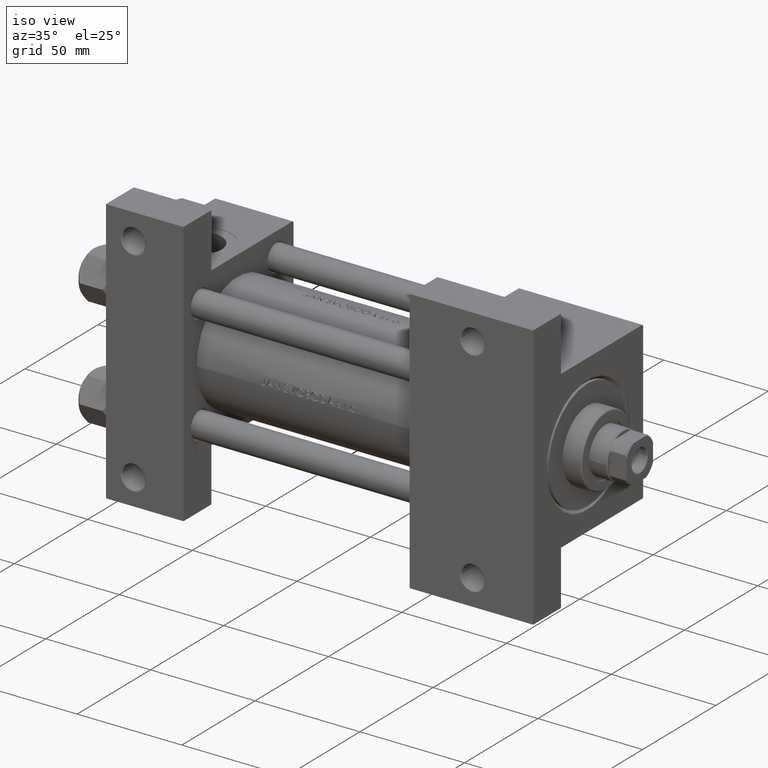
[diagram: clean part render]
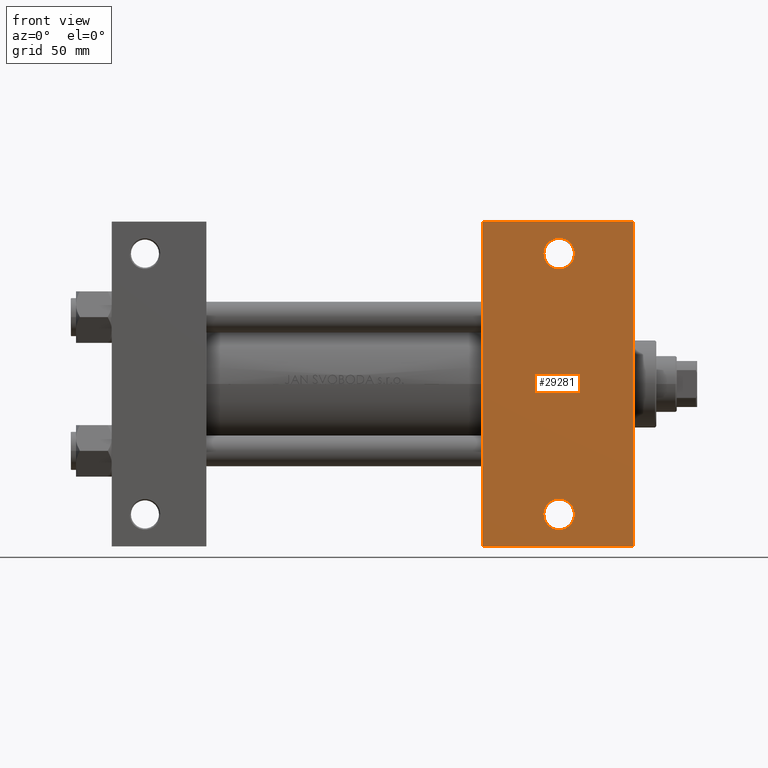
[diagram: tour spotlight — one face highlighted and labeled with its STEP entity id]
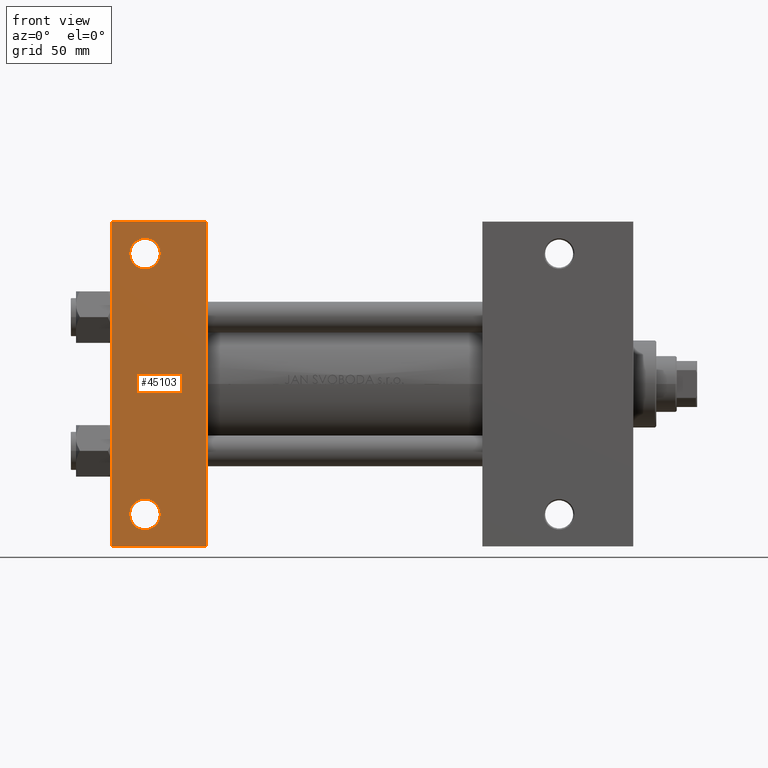
[diagram: tour spotlight — one face highlighted and labeled with its STEP entity id]
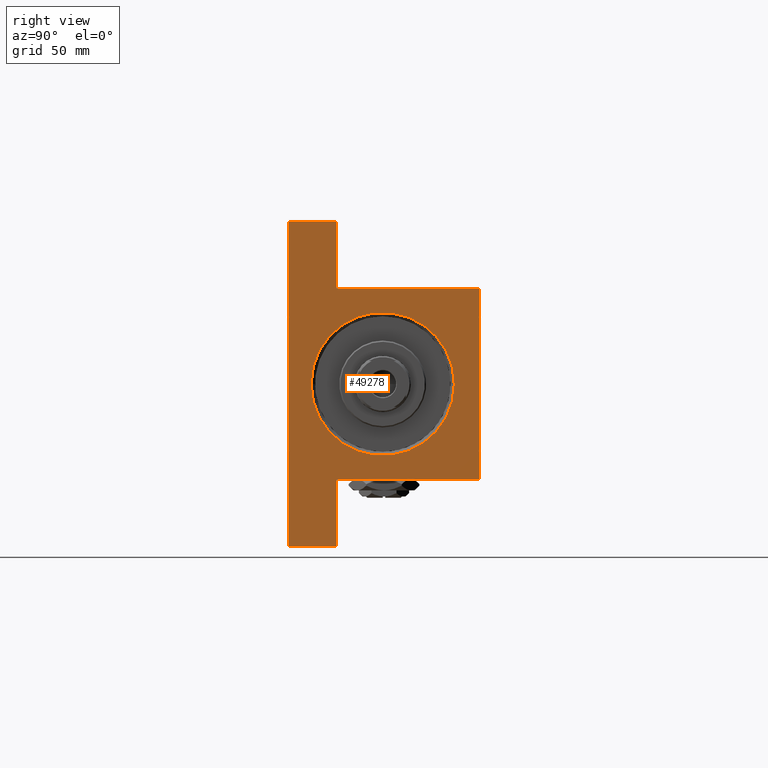
[diagram: tour spotlight — one face highlighted and labeled with its STEP entity id]
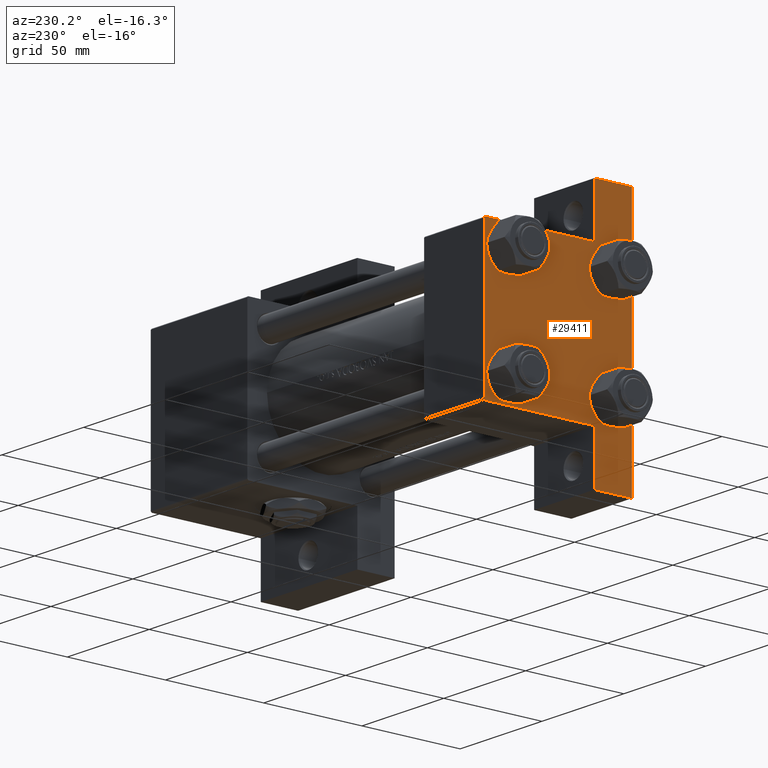
[diagram: tour spotlight — one face highlighted and labeled with its STEP entity id]
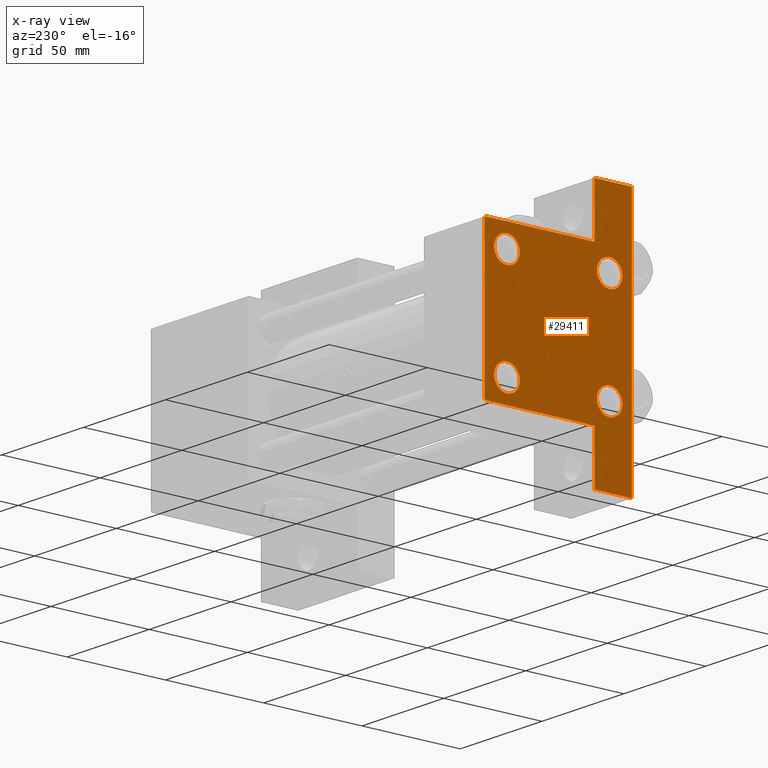
[diagram: x-ray of the same camera — body ghosted, this tour face saturated]
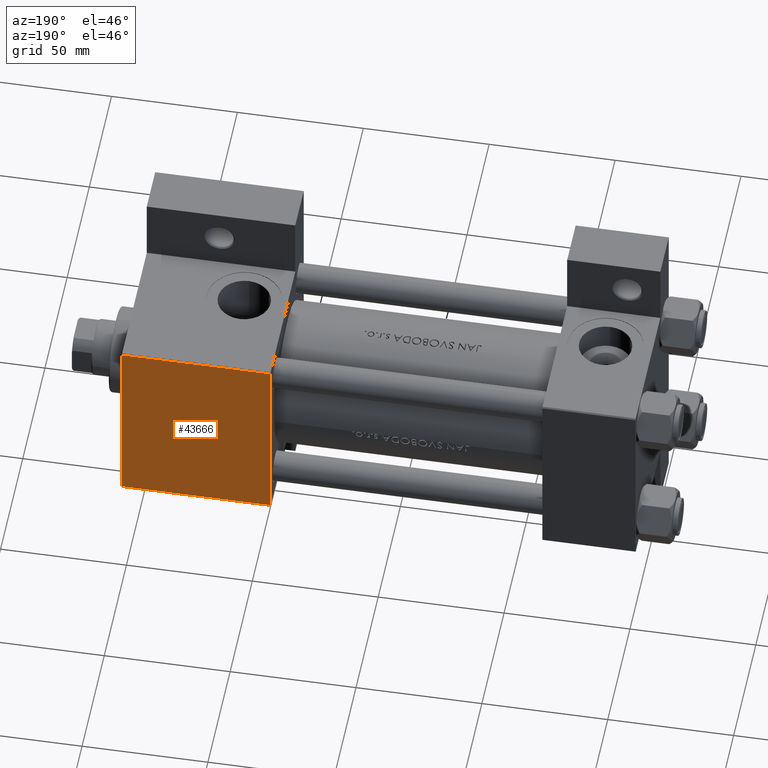
[diagram: tour spotlight — one face highlighted and labeled with its STEP entity id]
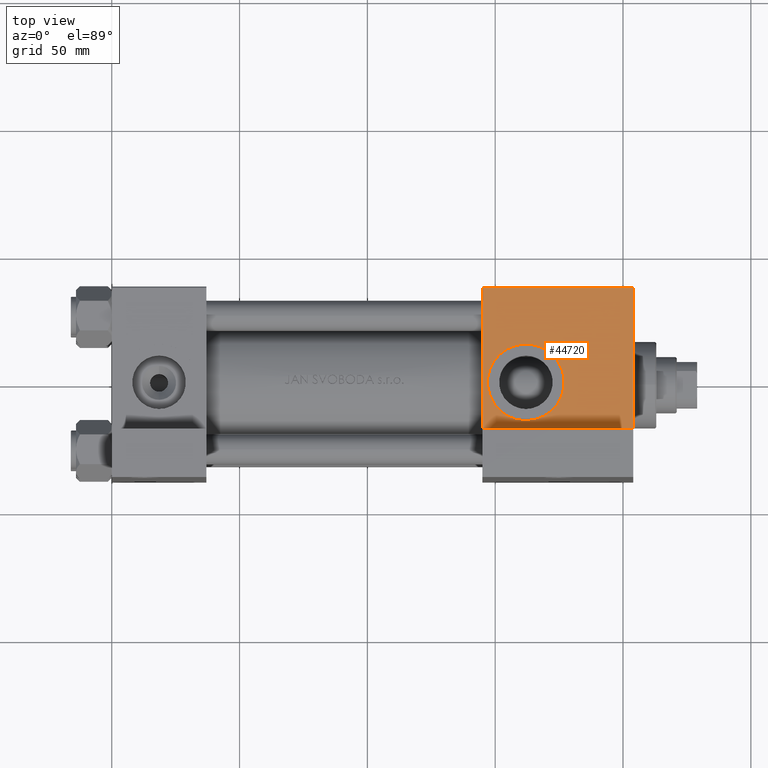
[diagram: tour spotlight — one face highlighted and labeled with its STEP entity id]
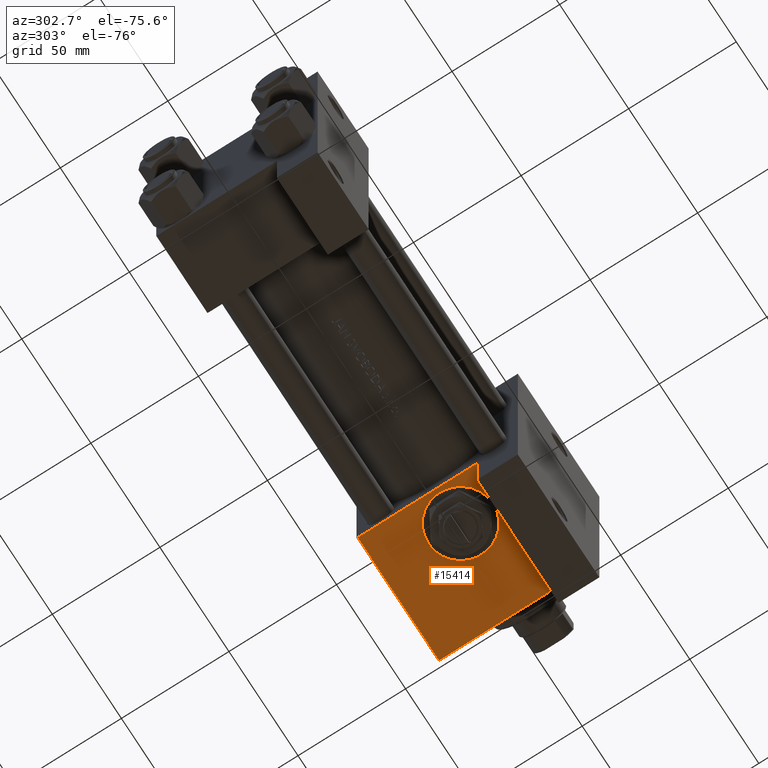
[diagram: tour spotlight — one face highlighted and labeled with its STEP entity id]
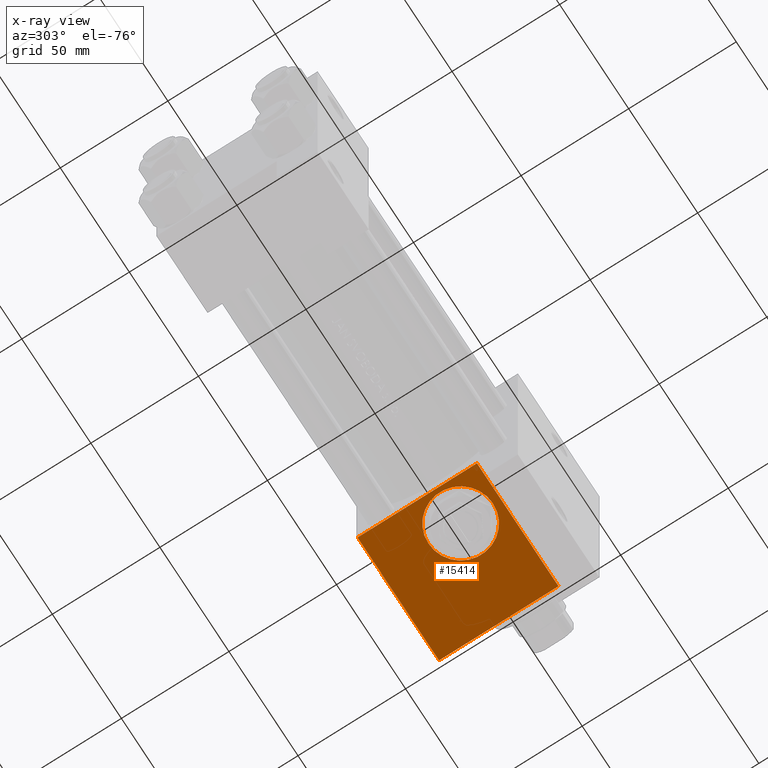
[diagram: x-ray of the same camera — body ghosted, this tour face saturated]
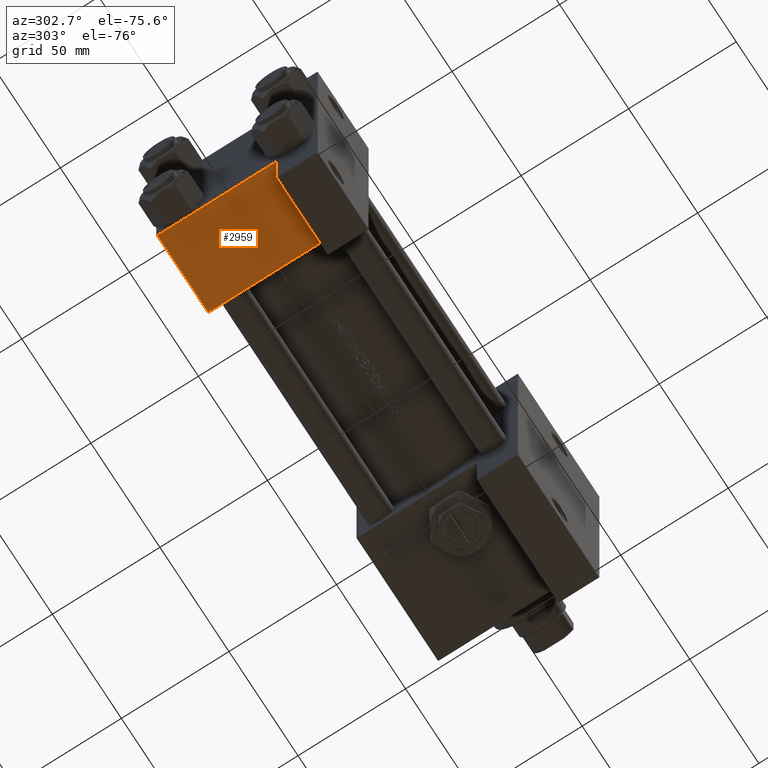
[diagram: tour spotlight — one face highlighted and labeled with its STEP entity id]
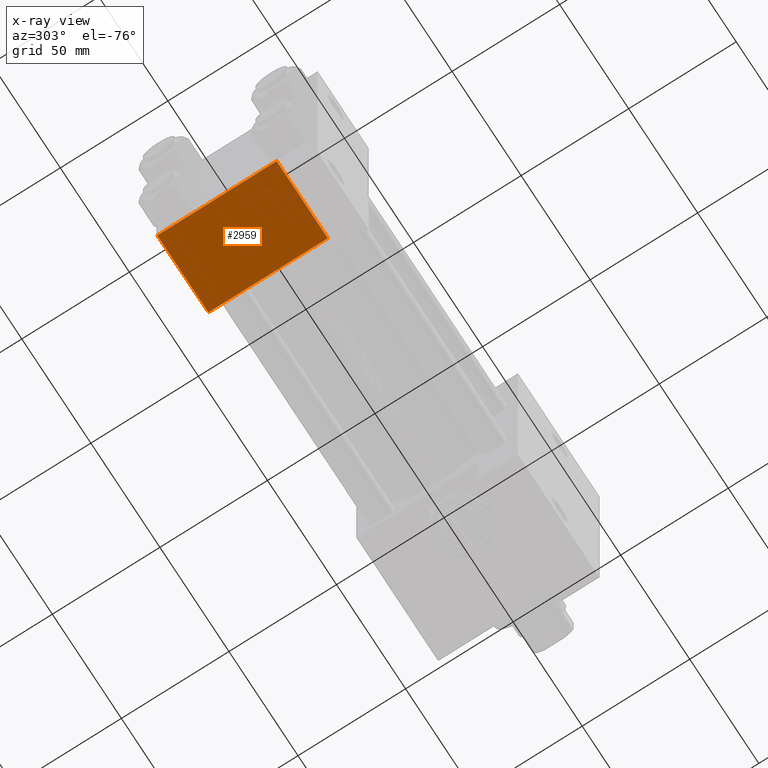
[diagram: x-ray of the same camera — body ghosted, this tour face saturated]
A machine part: a face-by-face anatomy tour. The part has 1134 B-rep faces; the first image is the clean iso view, then the 8 largest visible faces are spotlighted one at a time (largest first), each with its STEP entity span.

Face 1 — front view, entity #29281. In plain terms, the highlighted planar face has unit normal (0, -1, 0).
Definition (entity closure, byte-faithful):
#639 = DIRECTION ( 'NONE',  ( 0.000000000000000000, -1.000000000000000000, 0.000000000000000000 ) ) ;
#1155 = EDGE_LOOP ( 'NONE', ( #10653, #31602, #45425, #12414 ) ) ;
#2029 = CARTESIAN_POINT ( 'NONE',  ( 204.0000000000000000, 37.50000000000000000, -37.50000000000000000 ) ) ;
#3513 = VECTOR ( 'NONE', #24295, 1000.000000000000000 ) ;
#3532 = VERTEX_POINT ( 'NONE', #11374 ) ;
#4917 = LINE ( 'NONE', #31568, #45232 ) ;
#5124 = CARTESIAN_POINT ( 'NONE',  ( 145.0000000000000284, 63.49999999999997158, -37.50000000000000000 ) ) ;
#6246 = VERTEX_POINT ( 'NONE', #47303 ) ;
#7141 = EDGE_LOOP ( 'NONE', ( #10266, #48358 ) ) ;
#8141 = DIRECTION ( 'NONE',  ( -1.000000000000000000, 0.000000000000000000, 0.000000000000000000 ) ) ;
#9426 = EDGE_CURVE ( 'NONE', #6246, #9634, #28113, .T. ) ;
#9550 = CARTESIAN_POINT ( 'NONE',  ( 204.0000000000000284, 63.50000000000000000, -37.50000000000000000 ) ) ;
#9634 = VERTEX_POINT ( 'NONE', #17779 ) ;
#10266 = ORIENTED_EDGE ( 'NONE', *, *, #15341, .T. ) ;
#10447 = EDGE_CURVE ( 'NONE', #34330, #33179, #15598, .T. ) ;
#10483 = DIRECTION ( 'NONE',  ( -1.000000000000000000, 0.000000000000000000, -0.000000000000000000 ) ) ;
#10653 = ORIENTED_EDGE ( 'NONE', *, *, #36363, .F. ) ;
#11335 = EDGE_CURVE ( 'NONE', #40999, #3532, #35064, .T. ) ;
#11374 = CARTESIAN_POINT ( 'NONE',  ( 145.0000000000000000, -63.50000000000000000, -37.50000000000000000 ) ) ;
#12414 = ORIENTED_EDGE ( 'NONE', *, *, #11335, .T. ) ;
#13922 = DIRECTION ( 'NONE',  ( -0.000000000000000000, -0.000000000000000000, 1.000000000000000000 ) ) ;
#14013 = EDGE_CURVE ( 'NONE', #28142, #16175, #48945, .T. ) ;
#15341 = EDGE_CURVE ( 'NONE', #16175, #28142, #27523, .T. ) ;
#15598 = LINE ( 'NONE', #5124, #3513 ) ;
#15915 = DIRECTION ( 'NONE',  ( -1.000000000000000000, 4.704334850106593822E-16, -0.000000000000000000 ) ) ;
#16175 = VERTEX_POINT ( 'NONE', #19082 ) ;
#17480 = FACE_BOUND ( 'NONE', #7141, .T. ) ;
#17779 = CARTESIAN_POINT ( 'NONE',  ( 169.0005000000000166, 51.00000000000000000, -37.50000000000000000 ) ) ;
#18983 = CARTESIAN_POINT ( 'NONE',  ( 175.0000000000000000, 51.00000000000000000, -37.50000000000000000 ) ) ;
#19051 = CARTESIAN_POINT ( 'NONE',  ( 175.0000000000000000, 51.00000000000000000, -37.50000000000000000 ) ) ;
#19082 = CARTESIAN_POINT ( 'NONE',  ( 169.0005000000000166, -51.00000000000000711, -37.50000000000000000 ) ) ;
#20456 = AXIS2_PLACEMENT_3D ( 'NONE', #2029, #44582, #10483 ) ;
#20607 = CARTESIAN_POINT ( 'NONE',  ( 175.0000000000000000, -51.00000000000000711, -37.50000000000000000 ) ) ;
#21096 = DIRECTION ( 'NONE',  ( -1.000000000000000000, 0.000000000000000000, 0.000000000000000000 ) ) ;
#21447 = PLANE ( 'NONE',  #20456 ) ;
#23051 = CIRCLE ( 'NONE', #42917, 5.999499999999962974 ) ;
#24295 = DIRECTION ( 'NONE',  ( 1.000000000000000000, 4.704334850106593822E-16, 0.000000000000000000 ) ) ;
#24961 = AXIS2_PLACEMENT_3D ( 'NONE', #19051, #45185, #41201 ) ;
#26608 = CARTESIAN_POINT ( 'NONE',  ( 145.0000000000000284, 63.49999999999997158, -37.50000000000000000 ) ) ;
#27011 = CARTESIAN_POINT ( 'NONE',  ( 145.0000000000000000, 37.50000000000000000, -37.50000000000000000 ) ) ;
#27523 = CIRCLE ( 'NONE', #44238, 5.999499999999962974 ) ;
#27807 = DIRECTION ( 'NONE',  ( -0.000000000000000000, -0.000000000000000000, 1.000000000000000000 ) ) ;
#28113 = CIRCLE ( 'NONE', #24961, 5.999499999999962974 ) ;
#28142 = VERTEX_POINT ( 'NONE', #41376 ) ;
#29281 = ADVANCED_FACE ( 'NONE', ( #32899, #17480, #29401 ), #21447, .T. ) ;
#29401 = FACE_OUTER_BOUND ( 'NONE', #1155, .T. ) ;
#29788 = VECTOR ( 'NONE', #15915, 1000.000000000000000 ) ;
#30771 = LINE ( 'NONE', #27011, #45165 ) ;
#31568 = CARTESIAN_POINT ( 'NONE',  ( 204.0000000000000000, 37.50000000000000000, -37.50000000000000000 ) ) ;
#31602 = ORIENTED_EDGE ( 'NONE', *, *, #10447, .T. ) ;
#32899 = FACE_BOUND ( 'NONE', #35331, .T. ) ;
#33179 = VERTEX_POINT ( 'NONE', #9550 ) ;
#34050 = CARTESIAN_POINT ( 'NONE',  ( 175.0000000000000000, -51.00000000000000711, -37.50000000000000000 ) ) ;
#34152 = DIRECTION ( 'NONE',  ( -1.000000000000000000, 0.000000000000000000, 0.000000000000000000 ) ) ;
#34330 = VERTEX_POINT ( 'NONE', #26608 ) ;
#34632 = DIRECTION ( 'NONE',  ( -0.000000000000000000, -0.000000000000000000, 1.000000000000000000 ) ) ;
#35064 = LINE ( 'NONE', #46037, #29788 ) ;
#35331 = EDGE_LOOP ( 'NONE', ( #49114, #48269 ) ) ;
#36363 = EDGE_CURVE ( 'NONE', #34330, #3532, #30771, .T. ) ;
#37022 = AXIS2_PLACEMENT_3D ( 'NONE', #34050, #13922, #8141 ) ;
#39203 = EDGE_CURVE ( 'NONE', #33179, #40999, #4917, .T. ) ;
#40672 = EDGE_CURVE ( 'NONE', #9634, #6246, #23051, .T. ) ;
#40999 = VERTEX_POINT ( 'NONE', #49044 ) ;
#41201 = DIRECTION ( 'NONE',  ( -1.000000000000000000, 0.000000000000000000, 0.000000000000000000 ) ) ;
#41376 = CARTESIAN_POINT ( 'NONE',  ( 180.9994999999999550, -51.00000000000000711, -37.50000000000000000 ) ) ;
#42917 = AXIS2_PLACEMENT_3D ( 'NONE', #18983, #34632, #34152 ) ;
#44238 = AXIS2_PLACEMENT_3D ( 'NONE', #20607, #27807, #21096 ) ;
#44582 = DIRECTION ( 'NONE',  ( 0.000000000000000000, 0.000000000000000000, -1.000000000000000000 ) ) ;
#45165 = VECTOR ( 'NONE', #639, 1000.000000000000000 ) ;
#45185 = DIRECTION ( 'NONE',  ( -0.000000000000000000, -0.000000000000000000, 1.000000000000000000 ) ) ;
#45232 = VECTOR ( 'NONE', #46753, 1000.000000000000000 ) ;
#45425 = ORIENTED_EDGE ( 'NONE', *, *, #39203, .T. ) ;
#46037 = CARTESIAN_POINT ( 'NONE',  ( 145.0000000000000000, -63.50000000000000000, -37.50000000000000000 ) ) ;
#46753 = DIRECTION ( 'NONE',  ( 0.000000000000000000, -1.000000000000000000, 0.000000000000000000 ) ) ;
#47303 = CARTESIAN_POINT ( 'NONE',  ( 180.9994999999999550, 51.00000000000000000, -37.50000000000000000 ) ) ;
#48269 = ORIENTED_EDGE ( 'NONE', *, *, #9426, .T. ) ;
#48358 = ORIENTED_EDGE ( 'NONE', *, *, #14013, .T. ) ;
#48945 = CIRCLE ( 'NONE', #37022, 5.999499999999962974 ) ;
#49044 = CARTESIAN_POINT ( 'NONE',  ( 204.0000000000000284, -63.50000000000002842, -37.50000000000000000 ) ) ;
#49114 = ORIENTED_EDGE ( 'NONE', *, *, #40672, .T. ) ;

Face 2 — front view, entity #45103. In plain terms, the highlighted planar face has unit normal (0, -1, -0).
Definition (entity closure, byte-faithful):
#603 = ORIENTED_EDGE ( 'NONE', *, *, #45706, .F. ) ;
#1257 = EDGE_CURVE ( 'NONE', #1901, #39956, #14460, .T. ) ;
#1901 = VERTEX_POINT ( 'NONE', #14798 ) ;
#2404 = CARTESIAN_POINT ( 'NONE',  ( 12.99999999999999822, -51.00000000000002132, -37.50000000000000711 ) ) ;
#2765 = DIRECTION ( 'NONE',  ( 1.000000000000000000, 0.000000000000000000, 0.000000000000000000 ) ) ;
#2955 = FACE_BOUND ( 'NONE', #20437, .T. ) ;
#3083 = LINE ( 'NONE', #11538, #13654 ) ;
#3202 = EDGE_LOOP ( 'NONE', ( #603, #27286, #44004, #22423 ) ) ;
#3406 = VERTEX_POINT ( 'NONE', #7627 ) ;
#4428 = CARTESIAN_POINT ( 'NONE',  ( 7.000500000000034362, -51.00000000000002132, -37.50000000000000711 ) ) ;
#5198 = ORIENTED_EDGE ( 'NONE', *, *, #14937, .T. ) ;
#6016 = CARTESIAN_POINT ( 'NONE',  ( 1.595073532467135441E-14, 63.50000000000000000, -37.50000000000002132 ) ) ;
#6163 = CIRCLE ( 'NONE', #27499, 5.999499999999962974 ) ;
#6941 = FACE_OUTER_BOUND ( 'NONE', #3202, .T. ) ;
#7627 = CARTESIAN_POINT ( 'NONE',  ( 18.99949999999996209, -51.00000000000002132, -37.50000000000000711 ) ) ;
#9259 = CIRCLE ( 'NONE', #41818, 5.999499999999962974 ) ;
#10386 = LINE ( 'NONE', #25566, #41351 ) ;
#11538 = CARTESIAN_POINT ( 'NONE',  ( 0.000000000000000000, 37.49999999999999289, -37.50000000000000000 ) ) ;
#13195 = LINE ( 'NONE', #43547, #29525 ) ;
#13654 = VECTOR ( 'NONE', #14314, 1000.000000000000000 ) ;
#13689 = FACE_BOUND ( 'NONE', #30639, .T. ) ;
#14183 = PLANE ( 'NONE',  #18376 ) ;
#14314 = DIRECTION ( 'NONE',  ( 0.000000000000000000, -1.000000000000000000, -9.251858538542972814E-17 ) ) ;
#14460 = CIRCLE ( 'NONE', #20027, 5.999499999999962974 ) ;
#14798 = CARTESIAN_POINT ( 'NONE',  ( 7.000500000000034362, 50.99999999999998579, -37.50000000000000000 ) ) ;
#14937 = EDGE_CURVE ( 'NONE', #40014, #3406, #9259, .T. ) ;
#15183 = CARTESIAN_POINT ( 'NONE',  ( 37.00000000000000000, -63.50000000000000000, -37.49999999999999289 ) ) ;
#15581 = DIRECTION ( 'NONE',  ( 0.000000000000000000, 1.000000000000000000, 0.000000000000000000 ) ) ;
#16377 = VERTEX_POINT ( 'NONE', #44906 ) ;
#16974 = DIRECTION ( 'NONE',  ( -0.000000000000000000, -9.251858538542972814E-17, 1.000000000000000000 ) ) ;
#17434 = CARTESIAN_POINT ( 'NONE',  ( 12.99999999999999822, -51.00000000000002132, -37.50000000000000711 ) ) ;
#17898 = CIRCLE ( 'NONE', #24253, 5.999499999999962974 ) ;
#18376 = AXIS2_PLACEMENT_3D ( 'NONE', #22127, #37304, #43789 ) ;
#19160 = VECTOR ( 'NONE', #2765, 1000.000000000000000 ) ;
#20027 = AXIS2_PLACEMENT_3D ( 'NONE', #30882, #46548, #30378 ) ;
#20437 = EDGE_LOOP ( 'NONE', ( #30230, #24462 ) ) ;
#21153 = DIRECTION ( 'NONE',  ( 0.000000000000000000, 1.000000000000000000, 0.000000000000000000 ) ) ;
#22127 = CARTESIAN_POINT ( 'NONE',  ( 37.00000000000000000, 37.49999999999999289, -37.50000000000000000 ) ) ;
#22423 = ORIENTED_EDGE ( 'NONE', *, *, #44094, .T. ) ;
#23037 = VERTEX_POINT ( 'NONE', #34474 ) ;
#24253 = AXIS2_PLACEMENT_3D ( 'NONE', #2404, #37245, #15581 ) ;
#24462 = ORIENTED_EDGE ( 'NONE', *, *, #30775, .T. ) ;
#24635 = DIRECTION ( 'NONE',  ( -1.000000000000000000, -0.000000000000000000, -0.000000000000000000 ) ) ;
#24885 = DIRECTION ( 'NONE',  ( -0.000000000000000000, -9.251858538542972814E-17, 1.000000000000000000 ) ) ;
#25566 = CARTESIAN_POINT ( 'NONE',  ( 37.00000000000000000, 37.49999999999999289, -37.50000000000000000 ) ) ;
#26171 = EDGE_CURVE ( 'NONE', #3406, #40014, #17898, .T. ) ;
#27286 = ORIENTED_EDGE ( 'NONE', *, *, #43815, .T. ) ;
#27499 = AXIS2_PLACEMENT_3D ( 'NONE', #30739, #16974, #28407 ) ;
#28407 = DIRECTION ( 'NONE',  ( 0.000000000000000000, 1.000000000000000000, 0.000000000000000000 ) ) ;
#28667 = LINE ( 'NONE', #6016, #19160 ) ;
#28873 = CARTESIAN_POINT ( 'NONE',  ( 1.595073532467135441E-14, 63.50000000000000000, -37.50000000000002132 ) ) ;
#29525 = VECTOR ( 'NONE', #24635, 1000.000000000000000 ) ;
#30230 = ORIENTED_EDGE ( 'NONE', *, *, #1257, .T. ) ;
#30274 = DIRECTION ( 'NONE',  ( 0.000000000000000000, -1.000000000000000000, -9.251858538542972814E-17 ) ) ;
#30378 = DIRECTION ( 'NONE',  ( 0.000000000000000000, 1.000000000000000000, 0.000000000000000000 ) ) ;
#30639 = EDGE_LOOP ( 'NONE', ( #5198, #32459 ) ) ;
#30739 = CARTESIAN_POINT ( 'NONE',  ( 12.99999999999999822, 50.99999999999998579, -37.50000000000000000 ) ) ;
#30775 = EDGE_CURVE ( 'NONE', #39956, #1901, #6163, .T. ) ;
#30882 = CARTESIAN_POINT ( 'NONE',  ( 12.99999999999999822, 50.99999999999998579, -37.50000000000000000 ) ) ;
#32459 = ORIENTED_EDGE ( 'NONE', *, *, #26171, .T. ) ;
#34474 = CARTESIAN_POINT ( 'NONE',  ( 3.977209754999747208E-16, -63.50000000000000000, -37.49999999999999289 ) ) ;
#35297 = CARTESIAN_POINT ( 'NONE',  ( 18.99949999999996209, 50.99999999999998579, -37.50000000000000000 ) ) ;
#37245 = DIRECTION ( 'NONE',  ( -0.000000000000000000, -9.251858538542972814E-17, 1.000000000000000000 ) ) ;
#37304 = DIRECTION ( 'NONE',  ( 0.000000000000000000, 9.251858538542972814E-17, -1.000000000000000000 ) ) ;
#39956 = VERTEX_POINT ( 'NONE', #35297 ) ;
#40014 = VERTEX_POINT ( 'NONE', #4428 ) ;
#41033 = VERTEX_POINT ( 'NONE', #15183 ) ;
#41351 = VECTOR ( 'NONE', #30274, 1000.000000000000000 ) ;
#41818 = AXIS2_PLACEMENT_3D ( 'NONE', #17434, #24885, #21153 ) ;
#43547 = CARTESIAN_POINT ( 'NONE',  ( 3.977209754999747208E-16, -63.50000000000000000, -37.49999999999999289 ) ) ;
#43789 = DIRECTION ( 'NONE',  ( 0.000000000000000000, 1.000000000000000000, 9.251858538542972814E-17 ) ) ;
#43815 = EDGE_CURVE ( 'NONE', #48514, #16377, #28667, .T. ) ;
#44004 = ORIENTED_EDGE ( 'NONE', *, *, #46154, .T. ) ;
#44094 = EDGE_CURVE ( 'NONE', #41033, #23037, #13195, .T. ) ;
#44906 = CARTESIAN_POINT ( 'NONE',  ( 37.00000000000001421, 63.50000000000000000, -37.50000000000002132 ) ) ;
#45103 = ADVANCED_FACE ( 'NONE', ( #2955, #13689, #6941 ), #14183, .T. ) ;
#45706 = EDGE_CURVE ( 'NONE', #48514, #23037, #3083, .T. ) ;
#46154 = EDGE_CURVE ( 'NONE', #16377, #41033, #10386, .T. ) ;
#46548 = DIRECTION ( 'NONE',  ( -0.000000000000000000, -9.251858538542972814E-17, 1.000000000000000000 ) ) ;
#48514 = VERTEX_POINT ( 'NONE', #28873 ) ;

Face 3 — right view, entity #49278. In plain terms, the highlighted planar face has unit normal (-1, 0, 0).
Definition (entity closure, byte-faithful):
#104 = DIRECTION ( 'NONE',  ( -1.067522139062650277E-15, -1.000000000000000000, 0.000000000000000000 ) ) ;
#272 = CARTESIAN_POINT ( 'NONE',  ( 204.0000000000000284, 37.49999999999999289, -18.50000000000000000 ) ) ;
#279 = CIRCLE ( 'NONE', #6648, 27.99999999999988631 ) ;
#722 = ORIENTED_EDGE ( 'NONE', *, *, #42627, .T. ) ;
#2363 = LINE ( 'NONE', #14077, #15759 ) ;
#2675 = CARTESIAN_POINT ( 'NONE',  ( 204.0000000000000000, 0.000000000000000000, -0.5000000000000004441 ) ) ;
#3005 = VERTEX_POINT ( 'NONE', #272 ) ;
#3249 = EDGE_CURVE ( 'NONE', #16205, #22637, #15660, .T. ) ;
#3897 = DIRECTION ( 'NONE',  ( 0.000000000000000000, -0.7071067811865279218, 0.7071067811865671127 ) ) ;
#4385 = CARTESIAN_POINT ( 'NONE',  ( 204.0000000000000000, 37.00000000000002842, 37.49999999999999289 ) ) ;
#4597 = CARTESIAN_POINT ( 'NONE',  ( 204.0000000000000000, 37.00000000000002842, 37.49999999999999289 ) ) ;
#4917 = LINE ( 'NONE', #31568, #45232 ) ;
#5028 = DIRECTION ( 'NONE',  ( -1.000000000000000000, -0.000000000000000000, 0.000000000000000000 ) ) ;
#5836 = CARTESIAN_POINT ( 'NONE',  ( 204.0000000000000000, 37.50000000000000000, 37.49999999999999289 ) ) ;
#6055 = AXIS2_PLACEMENT_3D ( 'NONE', #2675, #17873, #48245 ) ;
#6648 = AXIS2_PLACEMENT_3D ( 'NONE', #48680, #14587, #48440 ) ;
#6987 = DIRECTION ( 'NONE',  ( 0.000000000000000000, 0.000000000000000000, -1.000000000000000000 ) ) ;
#7366 = ORIENTED_EDGE ( 'NONE', *, *, #31878, .F. ) ;
#8426 = DIRECTION ( 'NONE',  ( -0.000000000000000000, -1.000000000000000000, -0.000000000000000000 ) ) ;
#8827 = VERTEX_POINT ( 'NONE', #31101 ) ;
#9004 = ORIENTED_EDGE ( 'NONE', *, *, #30793, .T. ) ;
#9405 = EDGE_CURVE ( 'NONE', #15418, #44851, #279, .T. ) ;
#9504 = CARTESIAN_POINT ( 'NONE',  ( 204.0000000000000284, 63.50000000000000000, -18.50000000000000000 ) ) ;
#9550 = CARTESIAN_POINT ( 'NONE',  ( 204.0000000000000284, 63.50000000000000000, -37.50000000000000000 ) ) ;
#10926 = VECTOR ( 'NONE', #104, 1000.000000000000000 ) ;
#11861 = EDGE_LOOP ( 'NONE', ( #49016, #47732 ) ) ;
#12415 = VECTOR ( 'NONE', #3897, 1000.000000000000000 ) ;
#12510 = DIRECTION ( 'NONE',  ( 0.000000000000000000, 0.000000000000000000, 1.000000000000000000 ) ) ;
#12759 = FACE_OUTER_BOUND ( 'NONE', #21578, .T. ) ;
#14077 = CARTESIAN_POINT ( 'NONE',  ( 204.0000000000000000, -37.50000000000000000, 37.49999999999997868 ) ) ;
#14587 = DIRECTION ( 'NONE',  ( -1.000000000000000000, -0.000000000000000000, 0.000000000000000000 ) ) ;
#15418 = VERTEX_POINT ( 'NONE', #32543 ) ;
#15660 = LINE ( 'NONE', #23114, #24860 ) ;
#15759 = VECTOR ( 'NONE', #17562, 1000.000000000000000 ) ;
#15844 = CARTESIAN_POINT ( 'NONE',  ( 204.0000000000000000, 37.50000000000000000, 36.99999999999999289 ) ) ;
#16205 = VERTEX_POINT ( 'NONE', #23286 ) ;
#17193 = ORIENTED_EDGE ( 'NONE', *, *, #3249, .T. ) ;
#17308 = VECTOR ( 'NONE', #29141, 1000.000000000000000 ) ;
#17463 = LINE ( 'NONE', #39357, #17308 ) ;
#17562 = DIRECTION ( 'NONE',  ( 0.000000000000000000, -9.251858538542972814E-17, -1.000000000000000000 ) ) ;
#17873 = DIRECTION ( 'NONE',  ( -1.000000000000000000, -0.000000000000000000, 0.000000000000000000 ) ) ;
#18434 = EDGE_CURVE ( 'NONE', #8827, #33179, #45069, .T. ) ;
#18450 = CARTESIAN_POINT ( 'NONE',  ( 204.0000000000000284, -63.50000000000002842, -18.50000000000000000 ) ) ;
#18664 = VERTEX_POINT ( 'NONE', #4597 ) ;
#19100 = ORIENTED_EDGE ( 'NONE', *, *, #27328, .T. ) ;
#19589 = ORIENTED_EDGE ( 'NONE', *, *, #25396, .T. ) ;
#19691 = CARTESIAN_POINT ( 'NONE',  ( 204.0000000000000000, 0.000000000000000000, -28.49999999999988631 ) ) ;
#21283 = CARTESIAN_POINT ( 'NONE',  ( 204.0000000000000000, -37.50000000000000000, 37.00000000000000711 ) ) ;
#21578 = EDGE_LOOP ( 'NONE', ( #7366, #19100, #722, #25812, #39300, #17193, #19589, #33858, #29133, #9004 ) ) ;
#22637 = VERTEX_POINT ( 'NONE', #40852 ) ;
#23114 = CARTESIAN_POINT ( 'NONE',  ( 204.0000000000000284, -63.50000000000002842, -18.50000000000000000 ) ) ;
#23286 = CARTESIAN_POINT ( 'NONE',  ( 204.0000000000000000, -37.50000000000000711, -18.50000000000000355 ) ) ;
#24697 = CARTESIAN_POINT ( 'NONE',  ( 204.0000000000000000, 0.000000000000000000, 0.000000000000000000 ) ) ;
#24860 = VECTOR ( 'NONE', #8426, 1000.000000000000000 ) ;
#25069 = VECTOR ( 'NONE', #33626, 1000.000000000000000 ) ;
#25396 = EDGE_CURVE ( 'NONE', #22637, #40999, #47845, .T. ) ;
#25812 = ORIENTED_EDGE ( 'NONE', *, *, #34081, .T. ) ;
#27322 = EDGE_CURVE ( 'NONE', #44851, #15418, #30681, .T. ) ;
#27328 = EDGE_CURVE ( 'NONE', #32786, #18664, #30056, .T. ) ;
#29133 = ORIENTED_EDGE ( 'NONE', *, *, #18434, .F. ) ;
#29141 = DIRECTION ( 'NONE',  ( -0.000000000000000000, -0.7071067811865671127, -0.7071067811865279218 ) ) ;
#30056 = LINE ( 'NONE', #4385, #12415 ) ;
#30681 = CIRCLE ( 'NONE', #6055, 27.99999999999988631 ) ;
#30793 = EDGE_CURVE ( 'NONE', #8827, #3005, #43593, .T. ) ;
#31101 = CARTESIAN_POINT ( 'NONE',  ( 204.0000000000000284, 63.50000000000000000, -18.50000000000000000 ) ) ;
#31568 = CARTESIAN_POINT ( 'NONE',  ( 204.0000000000000000, 37.50000000000000000, -37.50000000000000000 ) ) ;
#31878 = EDGE_CURVE ( 'NONE', #32786, #3005, #44148, .T. ) ;
#32543 = CARTESIAN_POINT ( 'NONE',  ( 204.0000000000000000, 3.429011037612575076E-15, 27.49999999999988631 ) ) ;
#32786 = VERTEX_POINT ( 'NONE', #15844 ) ;
#33179 = VERTEX_POINT ( 'NONE', #9550 ) ;
#33626 = DIRECTION ( 'NONE',  ( 0.000000000000000000, 0.000000000000000000, -1.000000000000000000 ) ) ;
#33858 = ORIENTED_EDGE ( 'NONE', *, *, #39203, .F. ) ;
#34081 = EDGE_CURVE ( 'NONE', #35150, #44753, #17463, .T. ) ;
#34966 = CARTESIAN_POINT ( 'NONE',  ( 204.0000000000000000, -37.00000000000000000, 37.49999999999997868 ) ) ;
#35150 = VERTEX_POINT ( 'NONE', #34966 ) ;
#35655 = FACE_BOUND ( 'NONE', #11861, .T. ) ;
#37137 = EDGE_CURVE ( 'NONE', #44753, #16205, #2363, .T. ) ;
#37590 = CARTESIAN_POINT ( 'NONE',  ( 204.0000000000000284, 63.50000000000000000, -18.50000000000000000 ) ) ;
#39203 = EDGE_CURVE ( 'NONE', #33179, #40999, #4917, .T. ) ;
#39300 = ORIENTED_EDGE ( 'NONE', *, *, #37137, .T. ) ;
#39357 = CARTESIAN_POINT ( 'NONE',  ( 204.0000000000000000, -37.50000000000000000, 37.00000000000000711 ) ) ;
#40852 = CARTESIAN_POINT ( 'NONE',  ( 204.0000000000000284, -63.50000000000002842, -18.50000000000000000 ) ) ;
#40999 = VERTEX_POINT ( 'NONE', #49044 ) ;
#41393 = LINE ( 'NONE', #48875, #46949 ) ;
#42627 = EDGE_CURVE ( 'NONE', #18664, #35150, #41393, .T. ) ;
#43593 = LINE ( 'NONE', #9504, #10926 ) ;
#44148 = LINE ( 'NONE', #5836, #46708 ) ;
#44753 = VERTEX_POINT ( 'NONE', #21283 ) ;
#44851 = VERTEX_POINT ( 'NONE', #19691 ) ;
#45069 = LINE ( 'NONE', #37590, #45098 ) ;
#45098 = VECTOR ( 'NONE', #6987, 1000.000000000000000 ) ;
#45232 = VECTOR ( 'NONE', #46753, 1000.000000000000000 ) ;
#46593 = AXIS2_PLACEMENT_3D ( 'NONE', #24697, #5028, #12510 ) ;
#46708 = VECTOR ( 'NONE', #47903, 1000.000000000000000 ) ;
#46753 = DIRECTION ( 'NONE',  ( 0.000000000000000000, -1.000000000000000000, 0.000000000000000000 ) ) ;
#46949 = VECTOR ( 'NONE', #49134, 1000.000000000000000 ) ;
#47103 = PLANE ( 'NONE',  #46593 ) ;
#47732 = ORIENTED_EDGE ( 'NONE', *, *, #9405, .T. ) ;
#47845 = LINE ( 'NONE', #18450, #25069 ) ;
#47903 = DIRECTION ( 'NONE',  ( 0.000000000000000000, 0.000000000000000000, -1.000000000000000000 ) ) ;
#48245 = DIRECTION ( 'NONE',  ( 0.000000000000000000, 0.000000000000000000, 1.000000000000000000 ) ) ;
#48440 = DIRECTION ( 'NONE',  ( 0.000000000000000000, 0.000000000000000000, 1.000000000000000000 ) ) ;
#48680 = CARTESIAN_POINT ( 'NONE',  ( 204.0000000000000000, 0.000000000000000000, -0.5000000000000004441 ) ) ;
#48875 = CARTESIAN_POINT ( 'NONE',  ( 204.0000000000000000, 37.50000000000000000, 37.49999999999999289 ) ) ;
#49016 = ORIENTED_EDGE ( 'NONE', *, *, #27322, .T. ) ;
#49044 = CARTESIAN_POINT ( 'NONE',  ( 204.0000000000000284, -63.50000000000002842, -37.50000000000000000 ) ) ;
#49134 = DIRECTION ( 'NONE',  ( 0.000000000000000000, -1.000000000000000000, -1.850371707708594316E-16 ) ) ;
#49278 = ADVANCED_FACE ( 'NONE', ( #35655, #12759 ), #47103, .F. ) ;

Face 4 — auxiliary view, entity #29411. An x-ray twin of the same camera follows (body ghosted, this face saturated) — the face is partly hidden behind the body. In plain terms, the highlighted planar face has unit normal (-1, 0, -0).
Definition (entity closure, byte-faithful):
#310 = EDGE_LOOP ( 'NONE', ( #24312, #23282 ) ) ;
#982 = VERTEX_POINT ( 'NONE', #30017 ) ;
#1100 = DIRECTION ( 'NONE',  ( 1.000000000000000000, -0.000000000000000000, 0.000000000000000000 ) ) ;
#1123 = ORIENTED_EDGE ( 'NONE', *, *, #28877, .T. ) ;
#1312 = DIRECTION ( 'NONE',  ( 4.278042683914906889E-17, -1.000000000000000000, 0.000000000000000000 ) ) ;
#1791 = VECTOR ( 'NONE', #11594, 1000.000000000000000 ) ;
#2014 = VERTEX_POINT ( 'NONE', #19997 ) ;
#3083 = LINE ( 'NONE', #11538, #13654 ) ;
#3353 = VERTEX_POINT ( 'NONE', #21361 ) ;
#3620 = ORIENTED_EDGE ( 'NONE', *, *, #13090, .F. ) ;
#3663 = VECTOR ( 'NONE', #18308, 1000.000000000000000 ) ;
#3739 = AXIS2_PLACEMENT_3D ( 'NONE', #37356, #41811, #37839 ) ;
#3819 = ORIENTED_EDGE ( 'NONE', *, *, #17324, .T. ) ;
#4359 = LINE ( 'NONE', #29774, #1791 ) ;
#4858 = AXIS2_PLACEMENT_3D ( 'NONE', #25849, #7175, #30820 ) ;
#4905 = DIRECTION ( 'NONE',  ( 1.000000000000000000, -0.000000000000000000, 0.000000000000000000 ) ) ;
#5566 = EDGE_CURVE ( 'NONE', #21013, #23037, #4359, .T. ) ;
#5722 = VERTEX_POINT ( 'NONE', #8604 ) ;
#5913 = DIRECTION ( 'NONE',  ( 0.000000000000000000, 0.000000000000000000, 1.000000000000000000 ) ) ;
#6667 = EDGE_CURVE ( 'NONE', #2014, #21013, #12031, .T. ) ;
#6795 = VECTOR ( 'NONE', #27284, 1000.000000000000000 ) ;
#6831 = CARTESIAN_POINT ( 'NONE',  ( 1.595073532467135441E-14, 63.50000000000000000, -18.50000000000000355 ) ) ;
#6993 = FACE_BOUND ( 'NONE', #10993, .T. ) ;
#7175 = DIRECTION ( 'NONE',  ( 1.000000000000000000, -0.000000000000000000, 0.000000000000000000 ) ) ;
#7235 = FACE_BOUND ( 'NONE', #310, .T. ) ;
#8259 = EDGE_CURVE ( 'NONE', #17354, #38675, #32509, .T. ) ;
#8604 = CARTESIAN_POINT ( 'NONE',  ( 0.000000000000000000, 26.14999999999999858, -32.65000000000001990 ) ) ;
#9297 = CIRCLE ( 'NONE', #37876, 6.500000000000015987 ) ;
#10474 = DIRECTION ( 'NONE',  ( 0.000000000000000000, -1.000000000000000000, -9.251858538542971581E-17 ) ) ;
#10497 = CARTESIAN_POINT ( 'NONE',  ( 0.000000000000000000, 37.49999999999999289, 37.00000000000000000 ) ) ;
#10993 = EDGE_LOOP ( 'NONE', ( #3819, #1123 ) ) ;
#11421 = VECTOR ( 'NONE', #28518, 1000.000000000000114 ) ;
#11538 = CARTESIAN_POINT ( 'NONE',  ( 0.000000000000000000, 37.49999999999999289, -37.50000000000000000 ) ) ;
#11594 = DIRECTION ( 'NONE',  ( 0.000000000000000000, -1.734723475976806848E-16, -1.000000000000000000 ) ) ;
#11735 = VERTEX_POINT ( 'NONE', #41623 ) ;
#11870 = AXIS2_PLACEMENT_3D ( 'NONE', #13519, #32674, #37135 ) ;
#11880 = CARTESIAN_POINT ( 'NONE',  ( 0.000000000000000000, -37.50000000000000711, 37.49999999999999289 ) ) ;
#12031 = LINE ( 'NONE', #20244, #28037 ) ;
#12751 = ORIENTED_EDGE ( 'NONE', *, *, #41769, .F. ) ;
#12986 = EDGE_LOOP ( 'NONE', ( #31225, #37035 ) ) ;
#13090 = EDGE_CURVE ( 'NONE', #46385, #2014, #15371, .T. ) ;
#13473 = ORIENTED_EDGE ( 'NONE', *, *, #8259, .T. ) ;
#13519 = CARTESIAN_POINT ( 'NONE',  ( 0.000000000000000000, 26.14999999999999858, 26.15000000000000213 ) ) ;
#13654 = VECTOR ( 'NONE', #14314, 1000.000000000000000 ) ;
#14314 = DIRECTION ( 'NONE',  ( 0.000000000000000000, -1.000000000000000000, -9.251858538542972814E-17 ) ) ;
#14894 = EDGE_CURVE ( 'NONE', #5722, #35106, #46595, .T. ) ;
#15371 = LINE ( 'NONE', #11880, #6795 ) ;
#15444 = FACE_BOUND ( 'NONE', #38803, .T. ) ;
#15520 = ORIENTED_EDGE ( 'NONE', *, *, #6667, .F. ) ;
#15926 = VECTOR ( 'NONE', #10474, 1000.000000000000000 ) ;
#16027 = EDGE_CURVE ( 'NONE', #11735, #48054, #9297, .T. ) ;
#16422 = DIRECTION ( 'NONE',  ( 1.000000000000000000, -0.000000000000000000, 0.000000000000000000 ) ) ;
#16600 = CARTESIAN_POINT ( 'NONE',  ( 0.000000000000000000, -26.14999999999999147, 19.64999999999999147 ) ) ;
#16914 = DIRECTION ( 'NONE',  ( 0.000000000000000000, 0.000000000000000000, 1.000000000000000000 ) ) ;
#17324 = EDGE_CURVE ( 'NONE', #3353, #27537, #47496, .T. ) ;
#17343 = VERTEX_POINT ( 'NONE', #6831 ) ;
#17354 = VERTEX_POINT ( 'NONE', #22021 ) ;
#17424 = CARTESIAN_POINT ( 'NONE',  ( 0.000000000000000000, -37.00000000000000711, 37.49999999999999289 ) ) ;
#17928 = ORIENTED_EDGE ( 'NONE', *, *, #5566, .F. ) ;
#18128 = CARTESIAN_POINT ( 'NONE',  ( 0.000000000000000000, -26.14999999999999147, -19.64999999999999503 ) ) ;
#18207 = PLANE ( 'NONE',  #3739 ) ;
#18308 = DIRECTION ( 'NONE',  ( 0.000000000000000000, 0.000000000000000000, -1.000000000000000000 ) ) ;
#18525 = ORIENTED_EDGE ( 'NONE', *, *, #27743, .T. ) ;
#18691 = VERTEX_POINT ( 'NONE', #30752 ) ;
#19129 = VECTOR ( 'NONE', #32714, 1000.000000000000000 ) ;
#19997 = CARTESIAN_POINT ( 'NONE',  ( -7.145701223179004046E-16, -37.50000000000000711, -18.50000000000000355 ) ) ;
#20244 = CARTESIAN_POINT ( 'NONE',  ( 3.977209754999744250E-16, -63.49999999999998579, -18.50000000000000355 ) ) ;
#20766 = CARTESIAN_POINT ( 'NONE',  ( -0.000000000000000000, -37.25000000000000000, 37.25000000000000000 ) ) ;
#20769 = DIRECTION ( 'NONE',  ( -2.877097866686192789E-16, -1.000000000000000000, 0.000000000000000000 ) ) ;
#21013 = VERTEX_POINT ( 'NONE', #40705 ) ;
#21274 = LINE ( 'NONE', #32959, #19129 ) ;
#21300 = EDGE_CURVE ( 'NONE', #46385, #24833, #24744, .T. ) ;
#21361 = CARTESIAN_POINT ( 'NONE',  ( 0.000000000000000000, -26.14999999999999147, 32.65000000000003411 ) ) ;
#21793 = VECTOR ( 'NONE', #20769, 1000.000000000000000 ) ;
#22021 = CARTESIAN_POINT ( 'NONE',  ( 0.000000000000000000, 36.99999999999999289, 37.50000000000000000 ) ) ;
#22042 = CIRCLE ( 'NONE', #30006, 6.500000000000023093 ) ;
#22176 = FACE_BOUND ( 'NONE', #12986, .T. ) ;
#23037 = VERTEX_POINT ( 'NONE', #34474 ) ;
#23282 = ORIENTED_EDGE ( 'NONE', *, *, #14894, .T. ) ;
#24003 = LINE ( 'NONE', #28720, #21793 ) ;
#24082 = CARTESIAN_POINT ( 'NONE',  ( 0.000000000000000000, -26.14999999999999147, -26.15000000000000924 ) ) ;
#24154 = EDGE_CURVE ( 'NONE', #17343, #45701, #24003, .T. ) ;
#24312 = ORIENTED_EDGE ( 'NONE', *, *, #44211, .T. ) ;
#24331 = DIRECTION ( 'NONE',  ( 0.000000000000000000, 0.000000000000000000, 1.000000000000000000 ) ) ;
#24446 = LINE ( 'NONE', #44813, #15926 ) ;
#24744 = LINE ( 'NONE', #20766, #26474 ) ;
#24833 = VERTEX_POINT ( 'NONE', #17424 ) ;
#24985 = DIRECTION ( 'NONE',  ( -0.000000000000000000, 0.7071067811865474617, 0.7071067811865474617 ) ) ;
#25370 = CARTESIAN_POINT ( 'NONE',  ( 0.000000000000000000, 26.14999999999999858, -19.64999999999998792 ) ) ;
#25509 = DIRECTION ( 'NONE',  ( 0.000000000000000000, 0.000000000000000000, 1.000000000000000000 ) ) ;
#25849 = CARTESIAN_POINT ( 'NONE',  ( 0.000000000000000000, 26.14999999999999858, -26.15000000000000213 ) ) ;
#26011 = AXIS2_PLACEMENT_3D ( 'NONE', #33467, #30219, #25509 ) ;
#26474 = VECTOR ( 'NONE', #24985, 1000.000000000000114 ) ;
#27284 = DIRECTION ( 'NONE',  ( 0.000000000000000000, 9.251858538542971581E-17, -1.000000000000000000 ) ) ;
#27370 = CARTESIAN_POINT ( 'NONE',  ( 0.000000000000000000, 26.14999999999999858, -26.15000000000000213 ) ) ;
#27537 = VERTEX_POINT ( 'NONE', #16600 ) ;
#27743 = EDGE_CURVE ( 'NONE', #38675, #45701, #37949, .T. ) ;
#28037 = VECTOR ( 'NONE', #1312, 1000.000000000000000 ) ;
#28366 = DIRECTION ( 'NONE',  ( 0.000000000000000000, 0.000000000000000000, 1.000000000000000000 ) ) ;
#28518 = DIRECTION ( 'NONE',  ( 0.000000000000000000, 0.7071067811865474617, -0.7071067811865474617 ) ) ;
#28570 = CIRCLE ( 'NONE', #11870, 6.500000000000023093 ) ;
#28720 = CARTESIAN_POINT ( 'NONE',  ( 1.595073532467135757E-14, 63.50000000000001421, -18.50000000000000355 ) ) ;
#28873 = CARTESIAN_POINT ( 'NONE',  ( 1.595073532467135441E-14, 63.50000000000000000, -37.50000000000002132 ) ) ;
#28877 = EDGE_CURVE ( 'NONE', #27537, #3353, #34683, .T. ) ;
#29411 = ADVANCED_FACE ( 'NONE', ( #6993, #15444, #7235, #22176, #30375 ), #18207, .T. ) ;
#29732 = CARTESIAN_POINT ( 'NONE',  ( 0.000000000000000000, -37.50000000000000711, 36.99999999999999289 ) ) ;
#29774 = CARTESIAN_POINT ( 'NONE',  ( 3.977209754999747208E-16, -63.49999999999998579, 26.72167621838007889 ) ) ;
#30006 = AXIS2_PLACEMENT_3D ( 'NONE', #39048, #16422, #16914 ) ;
#30017 = CARTESIAN_POINT ( 'NONE',  ( 0.000000000000000000, 26.14999999999999858, 32.65000000000002700 ) ) ;
#30219 = DIRECTION ( 'NONE',  ( 1.000000000000000000, -0.000000000000000000, 0.000000000000000000 ) ) ;
#30375 = FACE_OUTER_BOUND ( 'NONE', #41063, .T. ) ;
#30752 = CARTESIAN_POINT ( 'NONE',  ( 0.000000000000000000, 26.14999999999999858, 19.64999999999998437 ) ) ;
#30820 = DIRECTION ( 'NONE',  ( 0.000000000000000000, 0.000000000000000000, 1.000000000000000000 ) ) ;
#31175 = EDGE_CURVE ( 'NONE', #18691, #982, #22042, .T. ) ;
#31225 = ORIENTED_EDGE ( 'NONE', *, *, #39540, .T. ) ;
#32509 = LINE ( 'NONE', #43698, #11421 ) ;
#32674 = DIRECTION ( 'NONE',  ( 1.000000000000000000, -0.000000000000000000, 0.000000000000000000 ) ) ;
#32714 = DIRECTION ( 'NONE',  ( 0.000000000000000000, -1.734723475976806848E-16, -1.000000000000000000 ) ) ;
#32959 = CARTESIAN_POINT ( 'NONE',  ( 1.595073532467135441E-14, 63.50000000000001421, 26.72167621838005047 ) ) ;
#33467 = CARTESIAN_POINT ( 'NONE',  ( 0.000000000000000000, -26.14999999999999147, 26.15000000000000924 ) ) ;
#34213 = CARTESIAN_POINT ( 'NONE',  ( 0.000000000000000000, 37.49999999999999289, 37.50000000000000000 ) ) ;
#34377 = ORIENTED_EDGE ( 'NONE', *, *, #24154, .F. ) ;
#34406 = ORIENTED_EDGE ( 'NONE', *, *, #16027, .T. ) ;
#34474 = CARTESIAN_POINT ( 'NONE',  ( 3.977209754999747208E-16, -63.50000000000000000, -37.49999999999999289 ) ) ;
#34683 = CIRCLE ( 'NONE', #36298, 6.500000000000023093 ) ;
#35041 = CARTESIAN_POINT ( 'NONE',  ( 0.000000000000000000, -26.14999999999999147, -26.15000000000000924 ) ) ;
#35106 = VERTEX_POINT ( 'NONE', #25370 ) ;
#35751 = ORIENTED_EDGE ( 'NONE', *, *, #37927, .T. ) ;
#36298 = AXIS2_PLACEMENT_3D ( 'NONE', #43411, #1100, #46667 ) ;
#37035 = ORIENTED_EDGE ( 'NONE', *, *, #31175, .T. ) ;
#37135 = DIRECTION ( 'NONE',  ( 0.000000000000000000, 0.000000000000000000, 1.000000000000000000 ) ) ;
#37356 = CARTESIAN_POINT ( 'NONE',  ( 0.000000000000000000, 0.000000000000000000, 0.000000000000000000 ) ) ;
#37455 = ORIENTED_EDGE ( 'NONE', *, *, #21300, .T. ) ;
#37839 = DIRECTION ( 'NONE',  ( -0.000000000000000000, 0.000000000000000000, 1.000000000000000000 ) ) ;
#37845 = AXIS2_PLACEMENT_3D ( 'NONE', #27370, #47051, #28366 ) ;
#37876 = AXIS2_PLACEMENT_3D ( 'NONE', #35041, #42750, #5913 ) ;
#37927 = EDGE_CURVE ( 'NONE', #48054, #11735, #43610, .T. ) ;
#37949 = LINE ( 'NONE', #34213, #3663 ) ;
#38675 = VERTEX_POINT ( 'NONE', #10497 ) ;
#38803 = EDGE_LOOP ( 'NONE', ( #35751, #34406 ) ) ;
#38836 = AXIS2_PLACEMENT_3D ( 'NONE', #24082, #4905, #24331 ) ;
#39048 = CARTESIAN_POINT ( 'NONE',  ( 0.000000000000000000, 26.14999999999999858, 26.15000000000000213 ) ) ;
#39540 = EDGE_CURVE ( 'NONE', #982, #18691, #28570, .T. ) ;
#39631 = ORIENTED_EDGE ( 'NONE', *, *, #42562, .T. ) ;
#40705 = CARTESIAN_POINT ( 'NONE',  ( 3.977209754999747208E-16, -63.50000000000000000, -18.50000000000000355 ) ) ;
#41063 = EDGE_LOOP ( 'NONE', ( #3620, #37455, #12751, #13473, #18525, #34377, #39631, #42296, #17928, #15520 ) ) ;
#41623 = CARTESIAN_POINT ( 'NONE',  ( 0.000000000000000000, -26.14999999999999147, -32.65000000000002700 ) ) ;
#41769 = EDGE_CURVE ( 'NONE', #17354, #24833, #24446, .T. ) ;
#41811 = DIRECTION ( 'NONE',  ( -1.000000000000000000, 0.000000000000000000, -0.000000000000000000 ) ) ;
#42296 = ORIENTED_EDGE ( 'NONE', *, *, #45706, .T. ) ;
#42562 = EDGE_CURVE ( 'NONE', #17343, #48514, #21274, .T. ) ;
#42750 = DIRECTION ( 'NONE',  ( 1.000000000000000000, -0.000000000000000000, 0.000000000000000000 ) ) ;
#43411 = CARTESIAN_POINT ( 'NONE',  ( 0.000000000000000000, -26.14999999999999147, 26.15000000000000924 ) ) ;
#43610 = CIRCLE ( 'NONE', #38836, 6.500000000000015987 ) ;
#43698 = CARTESIAN_POINT ( 'NONE',  ( 0.000000000000000000, 37.24999999999999289, 37.24999999999999289 ) ) ;
#44211 = EDGE_CURVE ( 'NONE', #35106, #5722, #44627, .T. ) ;
#44627 = CIRCLE ( 'NONE', #4858, 6.500000000000015987 ) ;
#44813 = CARTESIAN_POINT ( 'NONE',  ( 0.000000000000000000, 37.49999999999999289, 37.50000000000000000 ) ) ;
#45632 = CARTESIAN_POINT ( 'NONE',  ( 0.000000000000000000, 37.49999999999999289, -18.49999999999999645 ) ) ;
#45701 = VERTEX_POINT ( 'NONE', #45632 ) ;
#45706 = EDGE_CURVE ( 'NONE', #48514, #23037, #3083, .T. ) ;
#46385 = VERTEX_POINT ( 'NONE', #29732 ) ;
#46595 = CIRCLE ( 'NONE', #37845, 6.500000000000015987 ) ;
#46667 = DIRECTION ( 'NONE',  ( 0.000000000000000000, 0.000000000000000000, 1.000000000000000000 ) ) ;
#47051 = DIRECTION ( 'NONE',  ( 1.000000000000000000, -0.000000000000000000, 0.000000000000000000 ) ) ;
#47496 = CIRCLE ( 'NONE', #26011, 6.500000000000023093 ) ;
#48054 = VERTEX_POINT ( 'NONE', #18128 ) ;
#48514 = VERTEX_POINT ( 'NONE', #28873 ) ;

Face 5 — auxiliary view, entity #43666. In plain terms, the highlighted planar face has unit normal (0, -1, -0).
Definition (entity closure, byte-faithful):
#3551 = CARTESIAN_POINT ( 'NONE',  ( 204.0000000000000000, 37.50000000000000000, 37.49999999999999289 ) ) ;
#3908 = VERTEX_POINT ( 'NONE', #24591 ) ;
#4597 = CARTESIAN_POINT ( 'NONE',  ( 204.0000000000000000, 37.00000000000002842, 37.49999999999999289 ) ) ;
#5326 = LINE ( 'NONE', #35700, #28904 ) ;
#6425 = VECTOR ( 'NONE', #25514, 1000.000000000000000 ) ;
#7296 = FACE_OUTER_BOUND ( 'NONE', #45111, .T. ) ;
#8553 = EDGE_CURVE ( 'NONE', #10061, #35150, #5326, .T. ) ;
#10061 = VERTEX_POINT ( 'NONE', #17753 ) ;
#11312 = CARTESIAN_POINT ( 'NONE',  ( 145.0000000000000000, 37.00000000000002842, 37.49999999999999289 ) ) ;
#14573 = LINE ( 'NONE', #11312, #6425 ) ;
#16282 = ORIENTED_EDGE ( 'NONE', *, *, #47157, .T. ) ;
#16406 = ORIENTED_EDGE ( 'NONE', *, *, #8553, .T. ) ;
#17753 = CARTESIAN_POINT ( 'NONE',  ( 145.0000000000000000, -37.00000000000000000, 37.49999999999997868 ) ) ;
#18664 = VERTEX_POINT ( 'NONE', #4597 ) ;
#19256 = ORIENTED_EDGE ( 'NONE', *, *, #29736, .T. ) ;
#24591 = CARTESIAN_POINT ( 'NONE',  ( 145.0000000000000000, 37.00000000000002842, 37.49999999999999289 ) ) ;
#25514 = DIRECTION ( 'NONE',  ( -1.000000000000000000, 0.000000000000000000, 0.000000000000000000 ) ) ;
#28904 = VECTOR ( 'NONE', #39923, 1000.000000000000000 ) ;
#29736 = EDGE_CURVE ( 'NONE', #3908, #10061, #34388, .T. ) ;
#30438 = DIRECTION ( 'NONE',  ( 0.000000000000000000, 1.000000000000000000, 1.850371707708594316E-16 ) ) ;
#32670 = AXIS2_PLACEMENT_3D ( 'NONE', #3551, #49131, #30438 ) ;
#34151 = CARTESIAN_POINT ( 'NONE',  ( 145.0000000000000000, 37.50000000000000000, 37.49999999999999289 ) ) ;
#34388 = LINE ( 'NONE', #34151, #46680 ) ;
#34966 = CARTESIAN_POINT ( 'NONE',  ( 204.0000000000000000, -37.00000000000000000, 37.49999999999997868 ) ) ;
#35150 = VERTEX_POINT ( 'NONE', #34966 ) ;
#35700 = CARTESIAN_POINT ( 'NONE',  ( 204.0000000000000000, -37.00000000000000000, 37.49999999999997868 ) ) ;
#37084 = ORIENTED_EDGE ( 'NONE', *, *, #42627, .F. ) ;
#38364 = DIRECTION ( 'NONE',  ( 0.000000000000000000, -1.000000000000000000, -1.850371707708594316E-16 ) ) ;
#39923 = DIRECTION ( 'NONE',  ( 1.000000000000000000, 0.000000000000000000, 0.000000000000000000 ) ) ;
#41393 = LINE ( 'NONE', #48875, #46949 ) ;
#42627 = EDGE_CURVE ( 'NONE', #18664, #35150, #41393, .T. ) ;
#43666 = ADVANCED_FACE ( 'NONE', ( #7296 ), #46115, .F. ) ;
#45111 = EDGE_LOOP ( 'NONE', ( #37084, #16282, #19256, #16406 ) ) ;
#46115 = PLANE ( 'NONE',  #32670 ) ;
#46680 = VECTOR ( 'NONE', #38364, 1000.000000000000000 ) ;
#46949 = VECTOR ( 'NONE', #49134, 1000.000000000000000 ) ;
#47157 = EDGE_CURVE ( 'NONE', #18664, #3908, #14573, .T. ) ;
#48875 = CARTESIAN_POINT ( 'NONE',  ( 204.0000000000000000, 37.50000000000000000, 37.49999999999999289 ) ) ;
#49131 = DIRECTION ( 'NONE',  ( 0.000000000000000000, 1.850371707708594316E-16, -1.000000000000000000 ) ) ;
#49134 = DIRECTION ( 'NONE',  ( 0.000000000000000000, -1.000000000000000000, -1.850371707708594316E-16 ) ) ;

Face 6 — top view, entity #44720. In plain terms, the highlighted planar face has unit normal (0, -0, -1).
Definition (entity closure, byte-faithful):
#680 = EDGE_LOOP ( 'NONE', ( #3114, #45073, #30403, #48886 ) ) ;
#1642 = CARTESIAN_POINT ( 'NONE',  ( 161.9999999999999716, -37.50000000000000000, 3.469446951953615767E-15 ) ) ;
#2363 = LINE ( 'NONE', #14077, #15759 ) ;
#3114 = ORIENTED_EDGE ( 'NONE', *, *, #37137, .F. ) ;
#4672 = ORIENTED_EDGE ( 'NONE', *, *, #18822, .F. ) ;
#5596 = CARTESIAN_POINT ( 'NONE',  ( 161.9999999999999716, -37.50000000000000000, 3.469446951953615767E-15 ) ) ;
#6564 = DIRECTION ( 'NONE',  ( 0.000000000000000000, 0.000000000000000000, -1.000000000000000000 ) ) ;
#8786 = VECTOR ( 'NONE', #24625, 1000.000000000000000 ) ;
#9344 = PLANE ( 'NONE',  #42224 ) ;
#9477 = DIRECTION ( 'NONE',  ( 1.000000000000000000, -3.528251137579945613E-16, 0.000000000000000000 ) ) ;
#9958 = LINE ( 'NONE', #43796, #20529 ) ;
#13331 = DIRECTION ( 'NONE',  ( 0.000000000000000000, 1.000000000000000000, -9.251858538542972814E-17 ) ) ;
#14077 = CARTESIAN_POINT ( 'NONE',  ( 204.0000000000000000, -37.50000000000000000, 37.49999999999997868 ) ) ;
#14806 = CIRCLE ( 'NONE', #42594, 15.00000000000002487 ) ;
#15759 = VECTOR ( 'NONE', #17562, 1000.000000000000000 ) ;
#16090 = DIRECTION ( 'NONE',  ( 0.000000000000000000, 0.000000000000000000, -1.000000000000000000 ) ) ;
#16205 = VERTEX_POINT ( 'NONE', #23286 ) ;
#17479 = VERTEX_POINT ( 'NONE', #28197 ) ;
#17562 = DIRECTION ( 'NONE',  ( 0.000000000000000000, -9.251858538542972814E-17, -1.000000000000000000 ) ) ;
#18822 = EDGE_CURVE ( 'NONE', #42259, #17479, #47551, .T. ) ;
#19798 = LINE ( 'NONE', #30993, #35826 ) ;
#20529 = VECTOR ( 'NONE', #9477, 1000.000000000000000 ) ;
#21283 = CARTESIAN_POINT ( 'NONE',  ( 204.0000000000000000, -37.50000000000000000, 37.00000000000000711 ) ) ;
#23286 = CARTESIAN_POINT ( 'NONE',  ( 204.0000000000000000, -37.50000000000000711, -18.50000000000000355 ) ) ;
#24625 = DIRECTION ( 'NONE',  ( 0.000000000000000000, -9.251858538542972814E-17, -1.000000000000000000 ) ) ;
#26261 = CARTESIAN_POINT ( 'NONE',  ( 161.9999999999999716, -37.50000000000000000, -15.00000000000002132 ) ) ;
#27590 = EDGE_CURVE ( 'NONE', #17479, #42259, #14806, .T. ) ;
#27606 = CARTESIAN_POINT ( 'NONE',  ( 145.0000000000000000, -37.50000000000000000, 37.49999999999997868 ) ) ;
#27660 = VERTEX_POINT ( 'NONE', #43701 ) ;
#28197 = CARTESIAN_POINT ( 'NONE',  ( 161.9999999999999716, -37.50000000000000000, 15.00000000000002842 ) ) ;
#28343 = LINE ( 'NONE', #27606, #8786 ) ;
#28490 = DIRECTION ( 'NONE',  ( 0.000000000000000000, 9.251858538542972814E-17, 1.000000000000000000 ) ) ;
#30403 = ORIENTED_EDGE ( 'NONE', *, *, #41906, .T. ) ;
#30993 = CARTESIAN_POINT ( 'NONE',  ( 204.0000000000000000, -37.50000000000000000, 37.00000000000000711 ) ) ;
#31349 = ORIENTED_EDGE ( 'NONE', *, *, #27590, .F. ) ;
#35826 = VECTOR ( 'NONE', #42415, 1000.000000000000000 ) ;
#36625 = EDGE_CURVE ( 'NONE', #27660, #16205, #9958, .T. ) ;
#37137 = EDGE_CURVE ( 'NONE', #44753, #16205, #2363, .T. ) ;
#40464 = VERTEX_POINT ( 'NONE', #47384 ) ;
#40666 = DIRECTION ( 'NONE',  ( 0.000000000000000000, -1.000000000000000000, -8.673617379884036705E-17 ) ) ;
#41906 = EDGE_CURVE ( 'NONE', #40464, #27660, #28343, .T. ) ;
#42224 = AXIS2_PLACEMENT_3D ( 'NONE', #48825, #13331, #28490 ) ;
#42259 = VERTEX_POINT ( 'NONE', #26261 ) ;
#42328 = EDGE_CURVE ( 'NONE', #44753, #40464, #19798, .T. ) ;
#42415 = DIRECTION ( 'NONE',  ( -1.000000000000000000, 0.000000000000000000, 0.000000000000000000 ) ) ;
#42454 = DIRECTION ( 'NONE',  ( 0.000000000000000000, -1.000000000000000000, -8.673617379884036705E-17 ) ) ;
#42594 = AXIS2_PLACEMENT_3D ( 'NONE', #1642, #42454, #16090 ) ;
#43425 = FACE_OUTER_BOUND ( 'NONE', #680, .T. ) ;
#43701 = CARTESIAN_POINT ( 'NONE',  ( 145.0000000000000000, -37.50000000000000000, -18.50000000000000000 ) ) ;
#43796 = CARTESIAN_POINT ( 'NONE',  ( 145.0000000000000000, -37.50000000000000000, -18.50000000000000000 ) ) ;
#44720 = ADVANCED_FACE ( 'NONE', ( #45084, #43425 ), #9344, .F. ) ;
#44753 = VERTEX_POINT ( 'NONE', #21283 ) ;
#45073 = ORIENTED_EDGE ( 'NONE', *, *, #42328, .T. ) ;
#45084 = FACE_BOUND ( 'NONE', #45463, .T. ) ;
#45463 = EDGE_LOOP ( 'NONE', ( #4672, #31349 ) ) ;
#47384 = CARTESIAN_POINT ( 'NONE',  ( 145.0000000000000000, -37.50000000000000000, 37.00000000000000711 ) ) ;
#47551 = CIRCLE ( 'NONE', #48430, 15.00000000000002487 ) ;
#48430 = AXIS2_PLACEMENT_3D ( 'NONE', #5596, #40666, #6564 ) ;
#48825 = CARTESIAN_POINT ( 'NONE',  ( 204.0000000000000000, -37.50000000000000000, 37.49999999999997868 ) ) ;
#48886 = ORIENTED_EDGE ( 'NONE', *, *, #36625, .T. ) ;

Face 7 — auxiliary view, entity #15414. An x-ray twin of the same camera follows (body ghosted, this face saturated) — the face is partly hidden behind the body. In plain terms, the highlighted planar face has unit normal (0, 0, -1).
Definition (entity closure, byte-faithful):
#79 = LINE ( 'NONE', #45894, #961 ) ;
#272 = CARTESIAN_POINT ( 'NONE',  ( 204.0000000000000284, 37.49999999999999289, -18.50000000000000000 ) ) ;
#961 = VECTOR ( 'NONE', #4063, 1000.000000000000000 ) ;
#1829 = EDGE_CURVE ( 'NONE', #3005, #49171, #79, .T. ) ;
#1923 = FACE_BOUND ( 'NONE', #8443, .T. ) ;
#2954 = AXIS2_PLACEMENT_3D ( 'NONE', #11337, #29511, #15079 ) ;
#3005 = VERTEX_POINT ( 'NONE', #272 ) ;
#3025 = VECTOR ( 'NONE', #17804, 1000.000000000000000 ) ;
#4063 = DIRECTION ( 'NONE',  ( -1.000000000000000000, 1.176083712526648456E-16, -0.000000000000000000 ) ) ;
#4349 = LINE ( 'NONE', #19554, #31180 ) ;
#4701 = EDGE_CURVE ( 'NONE', #32942, #32786, #4349, .T. ) ;
#5836 = CARTESIAN_POINT ( 'NONE',  ( 204.0000000000000000, 37.50000000000000000, 37.49999999999999289 ) ) ;
#8443 = EDGE_LOOP ( 'NONE', ( #34618, #42557 ) ) ;
#8908 = FACE_OUTER_BOUND ( 'NONE', #23119, .T. ) ;
#10777 = VERTEX_POINT ( 'NONE', #34447 ) ;
#11337 = CARTESIAN_POINT ( 'NONE',  ( 161.9999999999999716, 37.50000000000000000, 0.000000000000000000 ) ) ;
#12265 = CARTESIAN_POINT ( 'NONE',  ( 145.0000000000000000, 37.50000000000000000, -18.50000000000000355 ) ) ;
#15079 = DIRECTION ( 'NONE',  ( 0.000000000000000000, 0.000000000000000000, 1.000000000000000000 ) ) ;
#15214 = CARTESIAN_POINT ( 'NONE',  ( 161.9999999999999716, 37.50000000000000000, 0.000000000000000000 ) ) ;
#15414 = ADVANCED_FACE ( 'NONE', ( #1923, #8908 ), #17375, .T. ) ;
#15844 = CARTESIAN_POINT ( 'NONE',  ( 204.0000000000000000, 37.50000000000000000, 36.99999999999999289 ) ) ;
#17375 = PLANE ( 'NONE',  #33125 ) ;
#17804 = DIRECTION ( 'NONE',  ( 0.000000000000000000, 0.000000000000000000, -1.000000000000000000 ) ) ;
#19554 = CARTESIAN_POINT ( 'NONE',  ( 204.0000000000000000, 37.50000000000000000, 36.99999999999999289 ) ) ;
#19803 = DIRECTION ( 'NONE',  ( 1.000000000000000000, 0.000000000000000000, 0.000000000000000000 ) ) ;
#20310 = LINE ( 'NONE', #32496, #3025 ) ;
#20849 = DIRECTION ( 'NONE',  ( -0.000000000000000000, 1.000000000000000000, 0.000000000000000000 ) ) ;
#23119 = EDGE_LOOP ( 'NONE', ( #36997, #32299, #45620, #30065 ) ) ;
#24473 = CIRCLE ( 'NONE', #40384, 15.00000000000002487 ) ;
#25367 = CARTESIAN_POINT ( 'NONE',  ( 161.9999999999999716, 37.50000000000000000, 15.00000000000002487 ) ) ;
#29511 = DIRECTION ( 'NONE',  ( 0.000000000000000000, 1.000000000000000000, 0.000000000000000000 ) ) ;
#30065 = ORIENTED_EDGE ( 'NONE', *, *, #1829, .T. ) ;
#31180 = VECTOR ( 'NONE', #19803, 1000.000000000000000 ) ;
#31647 = EDGE_CURVE ( 'NONE', #44144, #10777, #45887, .T. ) ;
#31878 = EDGE_CURVE ( 'NONE', #32786, #3005, #44148, .T. ) ;
#32299 = ORIENTED_EDGE ( 'NONE', *, *, #4701, .T. ) ;
#32496 = CARTESIAN_POINT ( 'NONE',  ( 145.0000000000000000, 37.50000000000000000, 37.49999999999999289 ) ) ;
#32786 = VERTEX_POINT ( 'NONE', #15844 ) ;
#32942 = VERTEX_POINT ( 'NONE', #45405 ) ;
#33125 = AXIS2_PLACEMENT_3D ( 'NONE', #43493, #20849, #36032 ) ;
#34447 = CARTESIAN_POINT ( 'NONE',  ( 161.9999999999999716, 37.50000000000000000, -15.00000000000002487 ) ) ;
#34618 = ORIENTED_EDGE ( 'NONE', *, *, #31647, .F. ) ;
#35801 = EDGE_CURVE ( 'NONE', #10777, #44144, #24473, .T. ) ;
#36032 = DIRECTION ( 'NONE',  ( 0.000000000000000000, -0.000000000000000000, 1.000000000000000000 ) ) ;
#36997 = ORIENTED_EDGE ( 'NONE', *, *, #37136, .F. ) ;
#37136 = EDGE_CURVE ( 'NONE', #32942, #49171, #20310, .T. ) ;
#38336 = DIRECTION ( 'NONE',  ( 0.000000000000000000, 1.000000000000000000, 0.000000000000000000 ) ) ;
#40384 = AXIS2_PLACEMENT_3D ( 'NONE', #15214, #38336, #46812 ) ;
#42557 = ORIENTED_EDGE ( 'NONE', *, *, #35801, .F. ) ;
#43493 = CARTESIAN_POINT ( 'NONE',  ( 204.0000000000000000, 37.50000000000000000, 37.49999999999999289 ) ) ;
#44144 = VERTEX_POINT ( 'NONE', #25367 ) ;
#44148 = LINE ( 'NONE', #5836, #46708 ) ;
#45405 = CARTESIAN_POINT ( 'NONE',  ( 145.0000000000000000, 37.50000000000000000, 36.99999999999999289 ) ) ;
#45620 = ORIENTED_EDGE ( 'NONE', *, *, #31878, .T. ) ;
#45887 = CIRCLE ( 'NONE', #2954, 15.00000000000002487 ) ;
#45894 = CARTESIAN_POINT ( 'NONE',  ( 145.0000000000000000, 37.50000000000000000, -18.50000000000000000 ) ) ;
#46708 = VECTOR ( 'NONE', #47903, 1000.000000000000000 ) ;
#46812 = DIRECTION ( 'NONE',  ( 0.000000000000000000, 0.000000000000000000, 1.000000000000000000 ) ) ;
#47903 = DIRECTION ( 'NONE',  ( 0.000000000000000000, 0.000000000000000000, -1.000000000000000000 ) ) ;
#49171 = VERTEX_POINT ( 'NONE', #12265 ) ;

Face 8 — auxiliary view, entity #2959. An x-ray twin of the same camera follows (body ghosted, this face saturated) — the face is partly hidden behind the body. In plain terms, the highlighted planar face has unit normal (0, 0, -1).
Definition (entity closure, byte-faithful):
#1383 = LINE ( 'NONE', #13346, #36600 ) ;
#2959 = ADVANCED_FACE ( 'NONE', ( #21477 ), #36658, .T. ) ;
#3663 = VECTOR ( 'NONE', #18308, 1000.000000000000000 ) ;
#5908 = VERTEX_POINT ( 'NONE', #20492 ) ;
#6923 = EDGE_CURVE ( 'NONE', #9269, #5908, #18176, .T. ) ;
#8976 = ORIENTED_EDGE ( 'NONE', *, *, #40453, .F. ) ;
#9269 = VERTEX_POINT ( 'NONE', #32516 ) ;
#9801 = DIRECTION ( 'NONE',  ( 1.000000000000000000, -3.750753461571474945E-16, 0.000000000000000000 ) ) ;
#10497 = CARTESIAN_POINT ( 'NONE',  ( 0.000000000000000000, 37.49999999999999289, 37.00000000000000000 ) ) ;
#12602 = DIRECTION ( 'NONE',  ( 1.000000000000000000, 0.000000000000000000, 0.000000000000000000 ) ) ;
#12794 = LINE ( 'NONE', #35937, #14271 ) ;
#13346 = CARTESIAN_POINT ( 'NONE',  ( 37.00000000000000000, 37.49999999999999289, 37.00000000000000000 ) ) ;
#14271 = VECTOR ( 'NONE', #9801, 1000.000000000000000 ) ;
#18176 = LINE ( 'NONE', #41540, #19314 ) ;
#18308 = DIRECTION ( 'NONE',  ( 0.000000000000000000, 0.000000000000000000, -1.000000000000000000 ) ) ;
#19314 = VECTOR ( 'NONE', #37323, 1000.000000000000000 ) ;
#19387 = ORIENTED_EDGE ( 'NONE', *, *, #46256, .T. ) ;
#20492 = CARTESIAN_POINT ( 'NONE',  ( 37.00000000000000711, 37.50000000000000711, -18.50000000000000355 ) ) ;
#21477 = FACE_OUTER_BOUND ( 'NONE', #41054, .T. ) ;
#21699 = AXIS2_PLACEMENT_3D ( 'NONE', #28695, #43867, #42078 ) ;
#26244 = ORIENTED_EDGE ( 'NONE', *, *, #6923, .T. ) ;
#27743 = EDGE_CURVE ( 'NONE', #38675, #45701, #37949, .T. ) ;
#28695 = CARTESIAN_POINT ( 'NONE',  ( 37.00000000000000000, 37.49999999999999289, 37.50000000000000000 ) ) ;
#30298 = ORIENTED_EDGE ( 'NONE', *, *, #27743, .F. ) ;
#32516 = CARTESIAN_POINT ( 'NONE',  ( 37.00000000000000000, 37.49999999999999289, 37.00000000000000000 ) ) ;
#34213 = CARTESIAN_POINT ( 'NONE',  ( 0.000000000000000000, 37.49999999999999289, 37.50000000000000000 ) ) ;
#35937 = CARTESIAN_POINT ( 'NONE',  ( 8.470280871287256020E-15, 37.50000000000002842, -18.49999999999999645 ) ) ;
#36600 = VECTOR ( 'NONE', #12602, 1000.000000000000000 ) ;
#36658 = PLANE ( 'NONE',  #21699 ) ;
#37323 = DIRECTION ( 'NONE',  ( 0.000000000000000000, 0.000000000000000000, -1.000000000000000000 ) ) ;
#37949 = LINE ( 'NONE', #34213, #3663 ) ;
#38675 = VERTEX_POINT ( 'NONE', #10497 ) ;
#40453 = EDGE_CURVE ( 'NONE', #45701, #5908, #12794, .T. ) ;
#41054 = EDGE_LOOP ( 'NONE', ( #8976, #30298, #19387, #26244 ) ) ;
#41540 = CARTESIAN_POINT ( 'NONE',  ( 37.00000000000000000, 37.49999999999999289, 37.50000000000000000 ) ) ;
#42078 = DIRECTION ( 'NONE',  ( 0.000000000000000000, -0.000000000000000000, 1.000000000000000000 ) ) ;
#43867 = DIRECTION ( 'NONE',  ( -0.000000000000000000, 1.000000000000000000, 0.000000000000000000 ) ) ;
#45632 = CARTESIAN_POINT ( 'NONE',  ( 0.000000000000000000, 37.49999999999999289, -18.49999999999999645 ) ) ;
#45701 = VERTEX_POINT ( 'NONE', #45632 ) ;
#46256 = EDGE_CURVE ( 'NONE', #38675, #9269, #1383, .T. ) ;